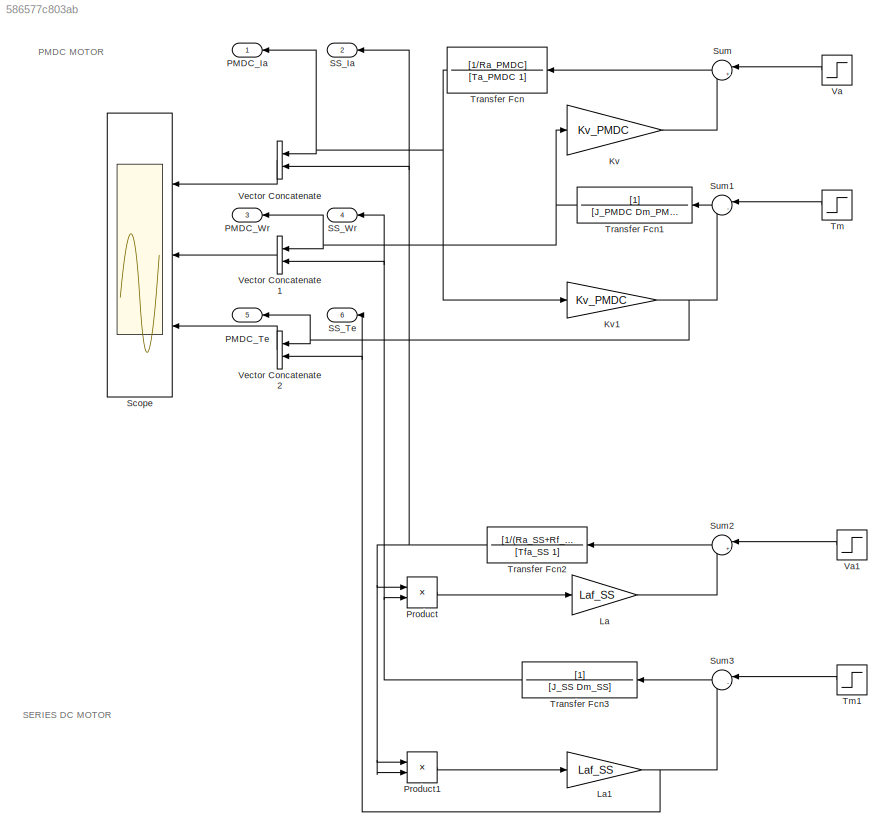
MODEL slx_586577c803ab
KIND model
CONFIG AbsTol = auto
CONFIG FixedStep = auto
CONFIG MaxStep = auto
CONFIG MinStep = auto
CONFIG RelTol = 1e-3
CONFIG SampleTimeConstraint = Unconstrained
CONFIG Solver = ode45
CONFIG SolverMode = Auto
CONFIG SolverName = ode45
CONFIG StartTime = 0.0
CONFIG StopTime = 1
BLOCK [Gain] Kv
  Gain = Kv_PMDC
  OutDataTypeStr = Inherit: Inherit via internal rule
  ParamDataTypeStr = Inherit: Inherit via internal rule
  SaturateOnIntegerOverflow = off
BLOCK [Gain] Kv1
  Gain = Kv_PMDC
  OutDataTypeStr = Inherit: Inherit via internal rule
  ParamDataTypeStr = Inherit: Inherit via internal rule
  SaturateOnIntegerOverflow = off
BLOCK [Gain] La
  Gain = Laf_SS
  OutDataTypeStr = Inherit: Inherit via internal rule
  ParamDataTypeStr = Inherit: Inherit via internal rule
  SaturateOnIntegerOverflow = off
BLOCK [Gain] La1
  Gain = Laf_SS
  OutDataTypeStr = Inherit: Inherit via internal rule
  ParamDataTypeStr = Inherit: Inherit via internal rule
  SaturateOnIntegerOverflow = off
BLOCK [Outport] PMDC_Ia
  IconDisplay = Port number
BLOCK [Outport] PMDC_Te
  IconDisplay = Port number
  Port = 5
BLOCK [Outport] PMDC_Wr
  IconDisplay = Port number
  Port = 3
BLOCK [Product] Product
  InputSameDT = off
  OutDataTypeStr = Inherit: Inherit via internal rule
  Ports = [2, 1]
  RndMeth = Floor
  SaturateOnIntegerOverflow = off
BLOCK [Product] Product1
  InputSameDT = off
  OutDataTypeStr = Inherit: Inherit via internal rule
  Ports = [2, 1]
  RndMeth = Floor
  SaturateOnIntegerOverflow = off
BLOCK [Outport] SS_Ia
  IconDisplay = Port number
  Port = 2
BLOCK [Outport] SS_Te
  IconDisplay = Port number
  Port = 6
BLOCK [Outport] SS_Wr
  IconDisplay = Port number
  Port = 4
BLOCK [Scope] Scope
  NumInputPorts = 3
  Ports = [3]
  ScopeSpecificationString = Simulink.scopes.TimeScopeBlockCfg('CurrentConfiguration', extmgr.ConfigurationSet(extmgr.Configuration('Core','General UI',true,'FigureColor',[0.501960784313725 0.501960784313725 0.501960784313725]),extmgr.Configuration('Core','Source UI',true),extmgr.Configuration('Sources','WiredSimulink',true,'DataLoggingSaveFormat','StructureWithTime','DataLoggingDecimation','1','DataLoggingDecimateData',true)...<+5043ch>
BLOCK [Sum] Sum
  IconShape = round
  InputSameDT = off
  Inputs = |+-
  OutDataTypeStr = Inherit: Inherit via internal rule
  Ports = [2, 1]
  SaturateOnIntegerOverflow = off
BLOCK [Sum] Sum1
  IconShape = round
  InputSameDT = off
  Inputs = |-+
  OutDataTypeStr = Inherit: Inherit via internal rule
  Ports = [2, 1]
  SaturateOnIntegerOverflow = off
BLOCK [Sum] Sum2
  IconShape = round
  InputSameDT = off
  Inputs = |+-
  OutDataTypeStr = Inherit: Inherit via internal rule
  Ports = [2, 1]
  SaturateOnIntegerOverflow = off
BLOCK [Sum] Sum3
  IconShape = round
  InputSameDT = off
  Inputs = |-+
  OutDataTypeStr = Inherit: Inherit via internal rule
  Ports = [2, 1]
  SaturateOnIntegerOverflow = off
BLOCK [Step] Tm
  After = Tm_PMDC
  SampleTime = 0
  Time = 0.5
BLOCK [Step] Tm1
  After = Tm_SS
  SampleTime = 0
  Time = 0.5
BLOCK [TransferFcn] Transfer Fcn
  Denominator = [Ta_PMDC 1]
  Numerator = [1/Ra_PMDC]
BLOCK [TransferFcn] Transfer Fcn1
  Denominator = [J_PMDC Dm_PMDC]
BLOCK [TransferFcn] Transfer Fcn2
  Denominator = [Tfa_SS 1]
  Numerator = [1/(Ra_SS+Rf_SS)]
BLOCK [TransferFcn] Transfer Fcn3
  Denominator = [J_SS Dm_SS]
BLOCK [Step] Va
  After = Va_PMDC
  SampleTime = 0
  Time = 0.05
BLOCK [Step] Va1
  After = Va_SS
  SampleTime = 0
  Time = 0.05
BLOCK [Concatenate] Vector Concatenate
  Ports = [2, 1]
BLOCK [Concatenate] Vector Concatenate1
  Ports = [2, 1]
BLOCK [Concatenate] Vector Concatenate2
  Ports = [2, 1]
ANNOTATION (root): PMDC MOTOR
ANNOTATION (root): SERIES DC MOTOR
NET Kv1:1 -> PMDC_Te:1, Sum1:2, Vector Concatenate2:1
LINE Kv:1 -> Sum:2
NET La1:1 -> SS_Te:1, Sum3:2, Vector Concatenate2:2
LINE La:1 -> Sum2:2
LINE Product1:1 -> La1:1
LINE Product:1 -> La:1
LINE Sum1:1 -> Transfer Fcn1:1
LINE Sum2:1 -> Transfer Fcn2:1
LINE Sum3:1 -> Transfer Fcn3:1
LINE Sum:1 -> Transfer Fcn:1
LINE Tm1:1 -> Sum3:1
LINE Tm:1 -> Sum1:1
NET Transfer Fcn1:1 -> Kv:1, PMDC_Wr:1, Vector Concatenate1:1
NET Transfer Fcn2:1 -> Product1:1, Product1:2, Product:1, SS_Ia:1, Vector Concatenate:2
NET Transfer Fcn3:1 -> Product:2, SS_Wr:1, Vector Concatenate1:2
NET Transfer Fcn:1 -> Kv1:1, PMDC_Ia:1, Vector Concatenate:1
LINE Va1:1 -> Sum2:1
LINE Va:1 -> Sum:1
LINE Vector Concatenate1:1 -> Scope:2
LINE Vector Concatenate2:1 -> Scope:3
LINE Vector Concatenate:1 -> Scope:1
note: NET lines group one-source signal fan-out (src -> all destinations, sorted); 1:1 wires keep LINE
